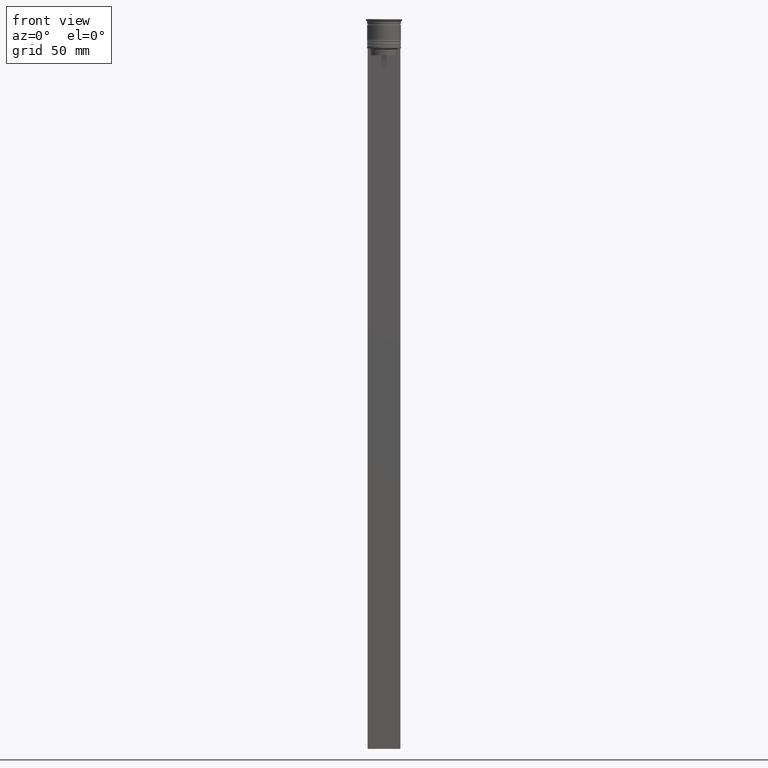
[diagram: clean part render]
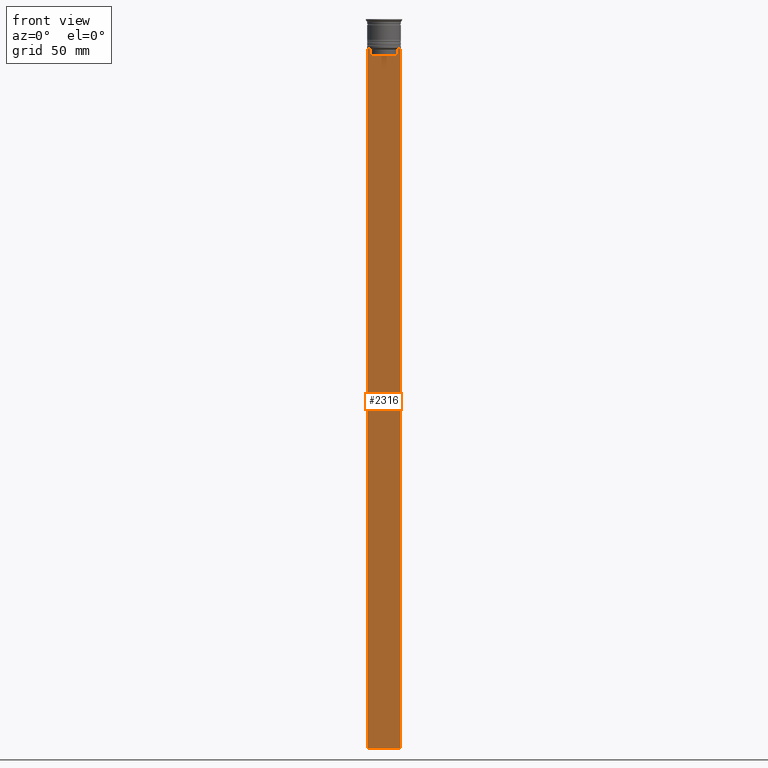
[diagram: same view with one face highlighted and labeled with its STEP entity id]
A machine part, front view. The second image highlights one B-rep face of the part: STEP entity #2316.
In plain terms, the highlighted planar face has unit normal (0, -1, -0).
Its self-contained STEP definition (entity closure, byte-faithful):
#5 = CARTESIAN_POINT ( 'NONE',  ( 5.627832620112292794, -0.5000000000000022204, -13.00000000000000000 ) ) ;
#39 = EDGE_CURVE ( 'NONE', #438, #1752, #2343, .T. ) ;
#114 = ORIENTED_EDGE ( 'NONE', *, *, #1090, .F. ) ;
#124 = EDGE_LOOP ( 'NONE', ( #758, #756, #1610, #1297, #486, #1909, #114, #131, #1520, #632 ) ) ;
#131 = ORIENTED_EDGE ( 'NONE', *, *, #742, .F. ) ;
#154 = LINE ( 'NONE', #1945, #270 ) ;
#179 = LINE ( 'NONE', #2147, #1806 ) ;
#270 = VECTOR ( 'NONE', #704, 1000.000000000000000 ) ;
#283 = CARTESIAN_POINT ( 'NONE',  ( -6.999999999999987566, -0.5000000000000022204, -312.5000000000000000 ) ) ;
#285 = VERTEX_POINT ( 'NONE', #283 ) ;
#286 = CARTESIAN_POINT ( 'NONE',  ( -5.627832620112292794, -0.5000000000000022204, 0.000000000000000000 ) ) ;
#398 = EDGE_CURVE ( 'NONE', #864, #1119, #658, .T. ) ;
#408 = VECTOR ( 'NONE', #1917, 1000.000000000000000 ) ;
#438 = VERTEX_POINT ( 'NONE', #546 ) ;
#481 = CARTESIAN_POINT ( 'NONE',  ( 5.627832620112292794, -0.5000000000000022204, -13.00000000000000000 ) ) ;
#486 = ORIENTED_EDGE ( 'NONE', *, *, #1716, .F. ) ;
#516 = CARTESIAN_POINT ( 'NONE',  ( -6.129641098791995368, -0.5000000000000022204, -12.50000000000000000 ) ) ;
#530 = EDGE_CURVE ( 'NONE', #635, #285, #1759, .T. ) ;
#533 = EDGE_CURVE ( 'NONE', #856, #1451, #179, .T. ) ;
#546 = CARTESIAN_POINT ( 'NONE',  ( -5.627832620112292794, -0.5000000000000022204, -15.50000000000000000 ) ) ;
#548 = LINE ( 'NONE', #1268, #1631 ) ;
#572 = VECTOR ( 'NONE', #2329, 1000.000000000000000 ) ;
#594 = CARTESIAN_POINT ( 'NONE',  ( 5.962396079681182570, -0.5000000000000022204, -12.66669137279835766 ) ) ;
#632 = ORIENTED_EDGE ( 'NONE', *, *, #1300, .F. ) ;
#635 = VERTEX_POINT ( 'NONE', #1981 ) ;
#658 = LINE ( 'NONE', #2084, #408 ) ;
#661 = DIRECTION ( 'NONE',  ( 0.000000000000000000, 0.000000000000000000, -1.000000000000000000 ) ) ;
#704 = DIRECTION ( 'NONE',  ( 0.000000000000000000, 0.000000000000000000, -1.000000000000000000 ) ) ;
#721 = VECTOR ( 'NONE', #1222, 1000.000000000000000 ) ;
#742 = EDGE_CURVE ( 'NONE', #1752, #1999, #975, .T. ) ;
#756 = ORIENTED_EDGE ( 'NONE', *, *, #398, .F. ) ;
#758 = ORIENTED_EDGE ( 'NONE', *, *, #1350, .F. ) ;
#775 = CARTESIAN_POINT ( 'NONE',  ( 5.795128760752288777, -0.5000000000000022204, -12.83336023406855375 ) ) ;
#808 = CARTESIAN_POINT ( 'NONE',  ( -6.129641098791995368, -0.5000000000000022204, -12.50000000000000000 ) ) ;
#856 = VERTEX_POINT ( 'NONE', #1072 ) ;
#863 = B_SPLINE_CURVE_WITH_KNOTS ( 'NONE', 3,
 ( #516, #2321, #1032, #1744 ),
 .UNSPECIFIED., .F., .F.,
 ( 4, 4 ),
 ( 0.01045365750109871796, 0.01116204421161398619 ),
 .UNSPECIFIED. ) ;
#864 = VERTEX_POINT ( 'NONE', #1205 ) ;
#931 = FACE_OUTER_BOUND ( 'NONE', #124, .T. ) ;
#950 = CARTESIAN_POINT ( 'NONE',  ( 7.000000000000012434, -0.5000000000000022204, -12.50000000000000000 ) ) ;
#975 = LINE ( 'NONE', #2239, #2069 ) ;
#1032 = CARTESIAN_POINT ( 'NONE',  ( -5.795128834036803234, -0.5000000000000022204, -12.83336016107156574 ) ) ;
#1072 = CARTESIAN_POINT ( 'NONE',  ( 6.129641098791995368, -0.5000000000000022204, -12.50000000000000000 ) ) ;
#1090 = EDGE_CURVE ( 'NONE', #1999, #856, #1594, .T. ) ;
#1118 = PLANE ( 'NONE',  #1183 ) ;
#1119 = VERTEX_POINT ( 'NONE', #808 ) ;
#1183 = AXIS2_PLACEMENT_3D ( 'NONE', #1653, #2015, #1274 ) ;
#1205 = CARTESIAN_POINT ( 'NONE',  ( -6.999999999999987566, -0.5000000000000022204, -12.50000000000000000 ) ) ;
#1222 = DIRECTION ( 'NONE',  ( -1.000000000000000000, 0.000000000000000000, 0.000000000000000000 ) ) ;
#1268 = CARTESIAN_POINT ( 'NONE',  ( 7.000000000000012434, -0.5000000000000022204, 1.535668847618198329 ) ) ;
#1274 = DIRECTION ( 'NONE',  ( 0.000000000000000000, 0.000000000000000000, -1.000000000000000000 ) ) ;
#1297 = ORIENTED_EDGE ( 'NONE', *, *, #530, .F. ) ;
#1300 = EDGE_CURVE ( 'NONE', #1683, #438, #2273, .T. ) ;
#1350 = EDGE_CURVE ( 'NONE', #1119, #1683, #863, .T. ) ;
#1373 = DIRECTION ( 'NONE',  ( -0.000000000000000000, -0.000000000000000000, 1.000000000000000000 ) ) ;
#1403 = CARTESIAN_POINT ( 'NONE',  ( 0.000000000000000000, -0.5000000000000022204, -15.50000000000000000 ) ) ;
#1451 = VERTEX_POINT ( 'NONE', #950 ) ;
#1520 = ORIENTED_EDGE ( 'NONE', *, *, #39, .F. ) ;
#1594 = B_SPLINE_CURVE_WITH_KNOTS ( 'NONE', 3,
 ( #5, #775, #594, #2163 ),
 .UNSPECIFIED., .F., .F.,
 ( 4, 4 ),
 ( 0.02651134470867370918, 0.02721991123504334531 ),
 .UNSPECIFIED. ) ;
#1610 = ORIENTED_EDGE ( 'NONE', *, *, #2156, .T. ) ;
#1613 = CARTESIAN_POINT ( 'NONE',  ( 7.000000000000012434, -0.5000000000000022204, -312.5000000000000000 ) ) ;
#1630 = VECTOR ( 'NONE', #661, 1000.000000000000000 ) ;
#1631 = VECTOR ( 'NONE', #1982, 1000.000000000000000 ) ;
#1653 = CARTESIAN_POINT ( 'NONE',  ( 7.000000000000012434, -0.5000000000000022204, 1.535668847618198329 ) ) ;
#1683 = VERTEX_POINT ( 'NONE', #2148 ) ;
#1716 = EDGE_CURVE ( 'NONE', #1451, #635, #548, .T. ) ;
#1744 = CARTESIAN_POINT ( 'NONE',  ( -5.627832620112292794, -0.5000000000000022204, -13.00000000000000000 ) ) ;
#1752 = VERTEX_POINT ( 'NONE', #1760 ) ;
#1759 = LINE ( 'NONE', #1613, #721 ) ;
#1760 = CARTESIAN_POINT ( 'NONE',  ( 5.627832620112292794, -0.5000000000000022204, -15.50000000000000000 ) ) ;
#1806 = VECTOR ( 'NONE', #1937, 1000.000000000000000 ) ;
#1909 = ORIENTED_EDGE ( 'NONE', *, *, #533, .F. ) ;
#1917 = DIRECTION ( 'NONE',  ( 1.000000000000000000, 0.000000000000000000, 0.000000000000000000 ) ) ;
#1937 = DIRECTION ( 'NONE',  ( 1.000000000000000000, 0.000000000000000000, 0.000000000000000000 ) ) ;
#1945 = CARTESIAN_POINT ( 'NONE',  ( -6.999999999999987566, -0.5000000000000022204, 1.535668847618198329 ) ) ;
#1981 = CARTESIAN_POINT ( 'NONE',  ( 7.000000000000012434, -0.5000000000000022204, -312.5000000000000000 ) ) ;
#1982 = DIRECTION ( 'NONE',  ( 0.000000000000000000, 0.000000000000000000, -1.000000000000000000 ) ) ;
#1999 = VERTEX_POINT ( 'NONE', #481 ) ;
#2015 = DIRECTION ( 'NONE',  ( 0.000000000000000000, -1.000000000000000000, -0.000000000000000000 ) ) ;
#2069 = VECTOR ( 'NONE', #1373, 1000.000000000000000 ) ;
#2084 = CARTESIAN_POINT ( 'NONE',  ( 7.000000000000012434, -0.5000000000000022204, -12.50000000000000000 ) ) ;
#2147 = CARTESIAN_POINT ( 'NONE',  ( 7.000000000000012434, -0.5000000000000022204, -12.50000000000000000 ) ) ;
#2148 = CARTESIAN_POINT ( 'NONE',  ( -5.627832620112292794, -0.5000000000000022204, -13.00000000000000000 ) ) ;
#2156 = EDGE_CURVE ( 'NONE', #864, #285, #154, .T. ) ;
#2163 = CARTESIAN_POINT ( 'NONE',  ( 6.129641098791995368, -0.5000000000000022204, -12.50000000000000000 ) ) ;
#2239 = CARTESIAN_POINT ( 'NONE',  ( 5.627832620112292794, -0.5000000000000022204, 0.000000000000000000 ) ) ;
#2273 = LINE ( 'NONE', #286, #1630 ) ;
#2316 = ADVANCED_FACE ( 'NONE', ( #931 ), #1118, .T. ) ;
#2321 = CARTESIAN_POINT ( 'NONE',  ( -5.962396146966409738, -0.5000000000000022204, -12.66669130573587054 ) ) ;
#2329 = DIRECTION ( 'NONE',  ( 1.000000000000000000, 0.000000000000000000, 0.000000000000000000 ) ) ;
#2343 = LINE ( 'NONE', #1403, #572 ) ;